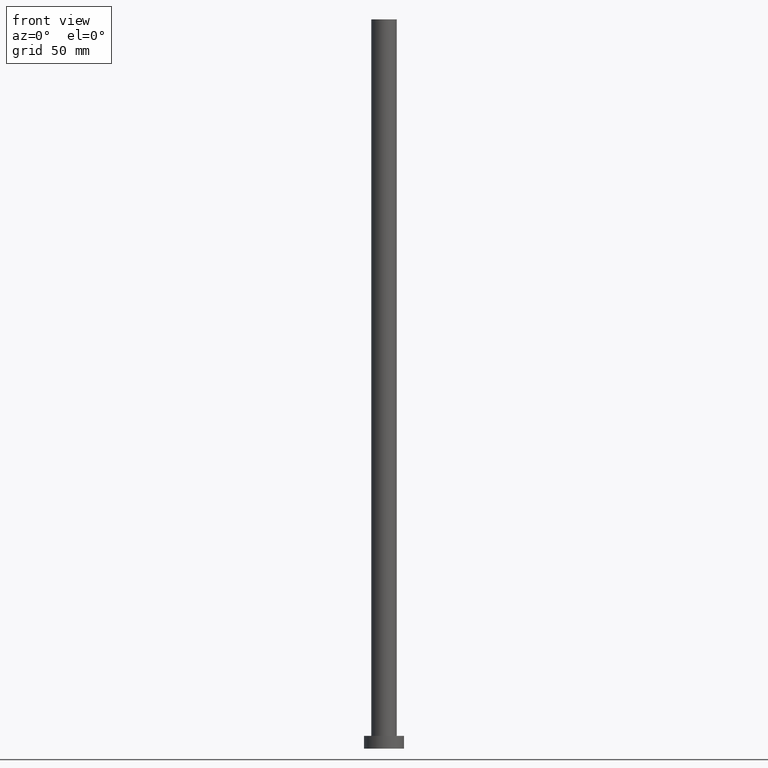
[diagram: clean part render]
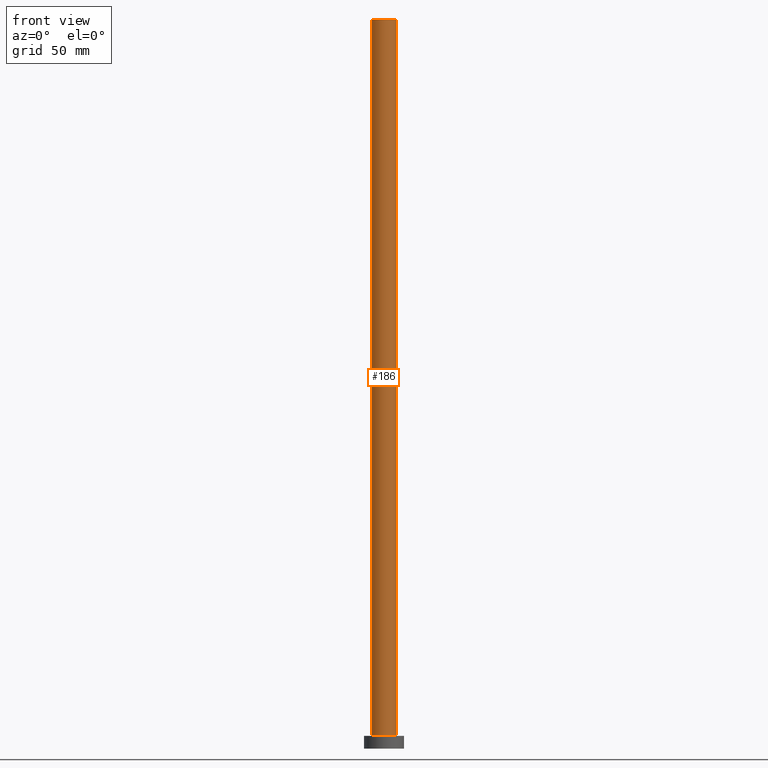
[diagram: same view with one face highlighted and labeled with its STEP entity id]
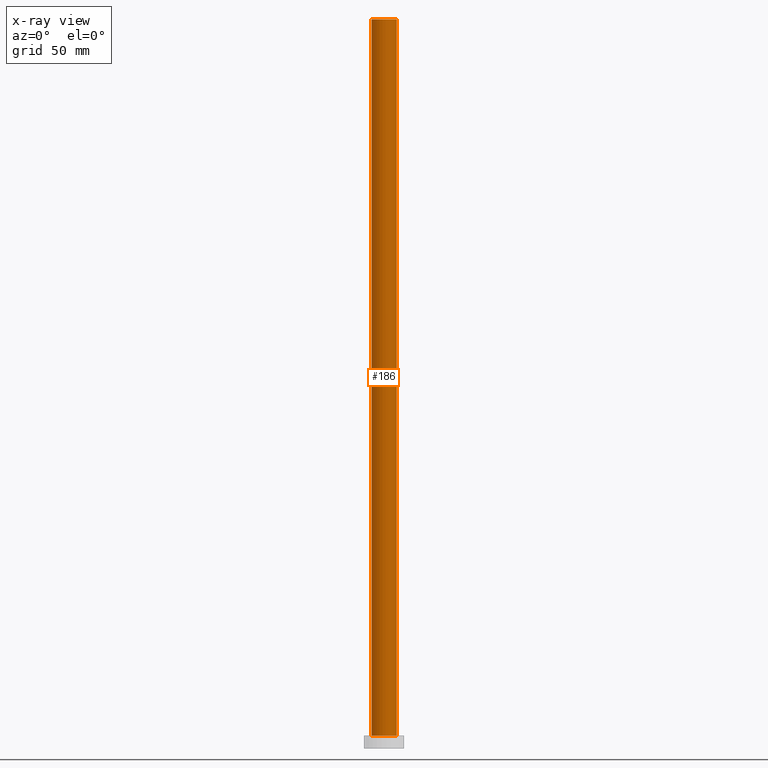
[diagram: x-ray of the same camera — body ghosted, the highlighted face saturated]
A machine part, front view. The second image highlights one B-rep face of the part: STEP entity #186.
The next image is the same camera in x-ray: the body ghosted, the highlighted face saturated — about 0% of this face is hidden behind the body in this view.
In plain terms, the highlighted cylindrical surface (edge-blend (fillet) strip) has radius 7 mm, axis along (-0, -0, -1).
Its self-contained STEP definition (entity closure, byte-faithful):
#5 = AXIS2_PLACEMENT_3D ( 'NONE', #69, #106, #70 ) ;
#10 = DIRECTION ( 'NONE',  ( 1.000000000000000000, 0.000000000000000000, 0.000000000000000000 ) ) ;
#13 = CARTESIAN_POINT ( 'NONE',  ( 0.000000000000000000, 0.000000000000000000, 7.000000000000000000 ) ) ;
#24 = EDGE_LOOP ( 'NONE', ( #101, #196, #45, #137 ) ) ;
#45 = ORIENTED_EDGE ( 'NONE', *, *, #77, .T. ) ;
#46 = DIRECTION ( 'NONE',  ( -0.000000000000000000, -0.000000000000000000, -1.000000000000000000 ) ) ;
#50 = LINE ( 'NONE', #231, #157 ) ;
#56 = CIRCLE ( 'NONE', #5, 7.000000000000000888 ) ;
#59 = VERTEX_POINT ( 'NONE', #62 ) ;
#62 = CARTESIAN_POINT ( 'NONE',  ( 7.000000000000000888, 8.572527594031474176E-16, 7.000000000000000000 ) ) ;
#69 = CARTESIAN_POINT ( 'NONE',  ( 0.000000000000000000, 0.000000000000000000, 400.0000000000000000 ) ) ;
#70 = DIRECTION ( 'NONE',  ( 1.000000000000000000, 0.000000000000000000, 0.000000000000000000 ) ) ;
#75 = AXIS2_PLACEMENT_3D ( 'NONE', #13, #86, #10 ) ;
#77 = EDGE_CURVE ( 'NONE', #180, #204, #160, .T. ) ;
#85 = CARTESIAN_POINT ( 'NONE',  ( -7.000000000000000888, 0.000000000000000000, 7.000000000000000000 ) ) ;
#86 = DIRECTION ( 'NONE',  ( 0.000000000000000000, 0.000000000000000000, 1.000000000000000000 ) ) ;
#101 = ORIENTED_EDGE ( 'NONE', *, *, #125, .F. ) ;
#106 = DIRECTION ( 'NONE',  ( 0.000000000000000000, 0.000000000000000000, 1.000000000000000000 ) ) ;
#108 = CYLINDRICAL_SURFACE ( 'NONE', #126, 7.000000000000000888 ) ;
#119 = FACE_OUTER_BOUND ( 'NONE', #24, .T. ) ;
#125 = EDGE_CURVE ( 'NONE', #140, #59, #50, .T. ) ;
#126 = AXIS2_PLACEMENT_3D ( 'NONE', #187, #188, #164 ) ;
#129 = EDGE_CURVE ( 'NONE', #180, #140, #56, .T. ) ;
#137 = ORIENTED_EDGE ( 'NONE', *, *, #162, .T. ) ;
#140 = VERTEX_POINT ( 'NONE', #150 ) ;
#147 = CARTESIAN_POINT ( 'NONE',  ( -7.000000000000000888, 0.000000000000000000, 400.0000000000000000 ) ) ;
#150 = CARTESIAN_POINT ( 'NONE',  ( 7.000000000000000888, 8.572527594031474176E-16, 400.0000000000000000 ) ) ;
#157 = VECTOR ( 'NONE', #205, 1000.000000000000000 ) ;
#160 = LINE ( 'NONE', #223, #170 ) ;
#162 = EDGE_CURVE ( 'NONE', #204, #59, #235, .T. ) ;
#164 = DIRECTION ( 'NONE',  ( -1.000000000000000000, 0.000000000000000000, 0.000000000000000000 ) ) ;
#170 = VECTOR ( 'NONE', #46, 1000.000000000000000 ) ;
#180 = VERTEX_POINT ( 'NONE', #147 ) ;
#186 = ADVANCED_FACE ( 'NONE', ( #119 ), #108, .T. ) ;
#187 = CARTESIAN_POINT ( 'NONE',  ( 0.000000000000000000, 0.000000000000000000, 400.0000000000000000 ) ) ;
#188 = DIRECTION ( 'NONE',  ( -0.000000000000000000, -0.000000000000000000, -1.000000000000000000 ) ) ;
#196 = ORIENTED_EDGE ( 'NONE', *, *, #129, .F. ) ;
#204 = VERTEX_POINT ( 'NONE', #85 ) ;
#205 = DIRECTION ( 'NONE',  ( -0.000000000000000000, -0.000000000000000000, -1.000000000000000000 ) ) ;
#223 = CARTESIAN_POINT ( 'NONE',  ( -7.000000000000000888, 0.000000000000000000, 400.0000000000000000 ) ) ;
#231 = CARTESIAN_POINT ( 'NONE',  ( 7.000000000000000888, 8.572527594031474176E-16, 400.0000000000000000 ) ) ;
#235 = CIRCLE ( 'NONE', #75, 7.000000000000000888 ) ;